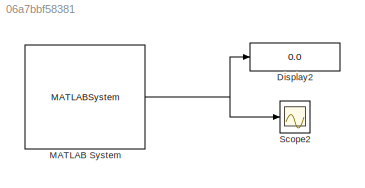
MODEL slx_06a7bbf58381
KIND model
CONFIG AbsTol = auto
CONFIG EnableMultiTasking = off
CONFIG FixedStep = .01
CONFIG MaxStep = auto
CONFIG MinStep = auto
CONFIG RelTol = 1e-3
CONFIG SampleTimeConstraint = Unconstrained
CONFIG SolverName = FixedStepAuto
CONFIG StartTime = 0.0
CONFIG StopTime = inf
BLOCK [Display] Display2
  Decimation = 1
BLOCK [MATLABSystem] MATLAB System
  BaudRate = 115200
  COMPort = /dev/ttyACM0
  MaskType = ArduinoSerial
  SimulateUsing = Interpreted execution
  System = ArduinoSerial
BLOCK [Scope] Scope2
  ActiveDisplayYMaximum = 3
  ActiveDisplayYMinimum = 1
  DataLoggingVariableName = ScopeData2
  Floating = off
  GraphicalSettings = {"Style":{"BackgroundColor":[0.12941176470588237,0.12941176470588237,0.12941176470588237],"AxesColor":[0.07058823529411765,0.07058823529411765,0.07058823529411765],"LabelsColor":[0.8509803921568627,0.8509803921568627,0.8509803921568627],"PreserveColors":false,"Visible":[true],"LineStyle":["-"],"LineWidth":[1.5],"BarWidth":[0.9],"LineColor":["auto"],"LineFaceAlpha":[1],"LineEdgeAlpha":[1],"Marker":...<+1913ch>
  MultipleDisplayCache = [{"MaxYLimMag":3,"MaxYLimReal":3,"MinYLimMag":1,"MinYLimReal":1,"PlotAsMagnitudePhase":false,"ShowGrid":true,"ShowLegend":false,"Title":"%<SignalLabel>","YLabel":""}]
  NumInputPorts = 1
  ScopeFrameLocation = window
  WasSavedAsWebScope = on
  WindowPosition = [994.000000,38.000000,927.000000,1131.000000,]
NET MATLAB System:1 -> Display2:1, Scope2:1
note: NET lines group one-source signal fan-out (src -> all destinations, sorted); 1:1 wires keep LINE
